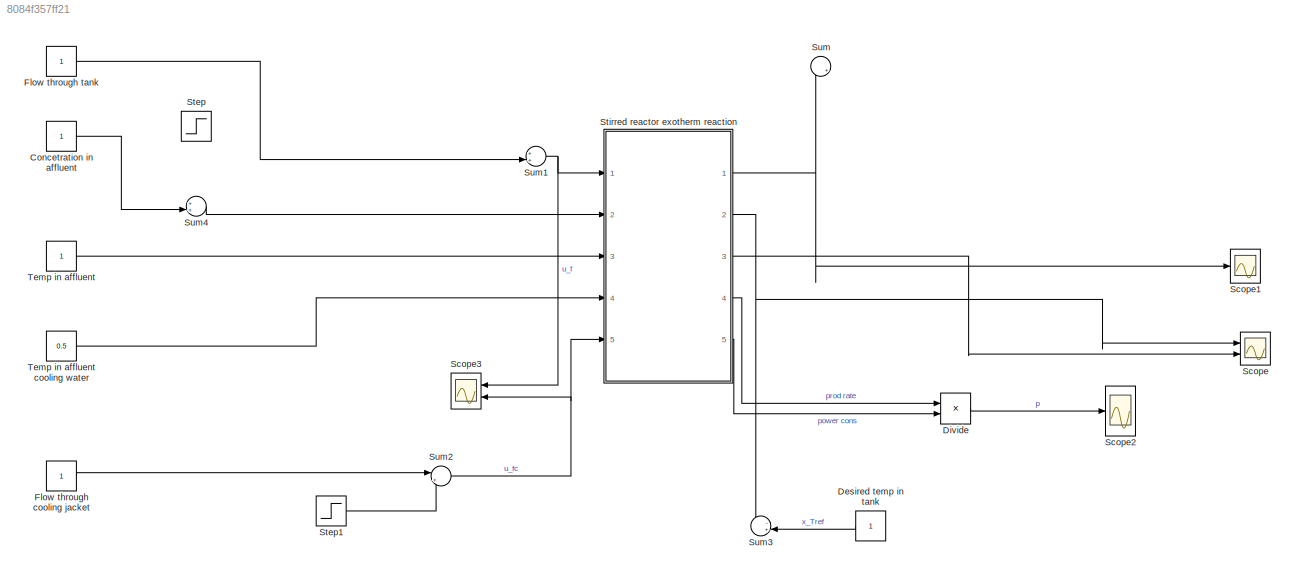
MODEL slx_8084f357ff21
KIND model
CONFIG AbsTol = auto
CONFIG EnableMultiTasking = off
CONFIG FixedStep = auto
CONFIG MaxStep = 0.01
CONFIG MinStep = auto
CONFIG RelTol = 1e-3
CONFIG SampleTimeConstraint = Unconstrained
CONFIG Solver = VariableStepAuto
CONFIG SolverName = VariableStepAuto
CONFIG StartTime = 0.0
CONFIG StopTime = 80
WORKSPACE source: MATLAB code (in-file)
WORKSPACE gamma = 1
WORKSPACE a_A = 4
WORKSPACE a_T = 3
WORKSPACE x_init = 1
WORKSPACE a_c = 1
WORKSPACE a_cc = 2
WORKSPACE T_init = 1
WORKSPACE T_c_init = 1
BLOCK [Constant] Concetration in affluent
BLOCK [Constant] Desired temp in tank
BLOCK [Product] Divide
  Inputs = */
  Ports = [2, 1]
BLOCK [Constant] Flow through cooling jacket
BLOCK [Constant] Flow through tank
BLOCK [Scope] Scope
  Floating = off
  NumInputPorts = 2
  Ports = [2]
  ScopeSpecificationString = Simulink.scopes.TimeScopeBlockCfg('CurrentConfiguration', extmgr.ConfigurationSet(extmgr.Configuration('Core','General UI',true),extmgr.Configuration('Core','Source UI',true),extmgr.Configuration('Sources','WiredSimulink',true),extmgr.Configuration('Visuals','Time Domain',true,'SerializedDisplays',{struct('MinYLimReal','0.72782','MaxYLimReal','1.26167','YLabelReal','','MinYLimMag','0.72782','MaxYL...<+1684ch>
BLOCK [Scope] Scope1
  Floating = off
  NumInputPorts = 1
  Ports = [1]
  ScopeSpecificationString = Simulink.scopes.TimeScopeBlockCfg('CurrentConfiguration', extmgr.ConfigurationSet(extmgr.Configuration('Core','General UI',true),extmgr.Configuration('Core','Source UI',true),extmgr.Configuration('Sources','WiredSimulink',true,'DataLoggingVariableName','ScopeData1'),extmgr.Configuration('Visuals','Time Domain',true,'SerializedDisplays',{struct('MinYLimReal','0.48976','MaxYLimReal','0.66173','YLabe...<+1765ch>
BLOCK [Scope] Scope2
  Floating = off
  NumInputPorts = 1
  Ports = [1]
  ScopeSpecificationString = Simulink.scopes.TimeScopeBlockCfg('CurrentConfiguration', extmgr.ConfigurationSet(extmgr.Configuration('Core','General UI',true),extmgr.Configuration('Core','Source UI',true),extmgr.Configuration('Sources','WiredSimulink',true,'DataLoggingVariableName','ScopeData2'),extmgr.Configuration('Visuals','Time Domain',true,'SerializedDisplays',{struct('MinYLimReal','0.25149','MaxYLimReal','3.2421','YLabel...<+1419ch>
BLOCK [Scope] Scope3
  Floating = off
  NumInputPorts = 2
  Ports = [2]
  ScopeSpecificationString = Simulink.scopes.TimeScopeBlockCfg('CurrentConfiguration', extmgr.ConfigurationSet(extmgr.Configuration('Core','General UI',true),extmgr.Configuration('Core','Source UI',true),extmgr.Configuration('Sources','WiredSimulink',true,'DataLoggingVariableName','ScopeData1'),extmgr.Configuration('Visuals','Time Domain',true,'SerializedDisplays',{struct('MinYLimReal','0.875','MaxYLimReal','2.125','YLabelRea...<+1420ch>
BLOCK [Step] Step
  After = 0.2
  SampleTime = 0
  Time = 40
BLOCK [Step] Step1
  After = 0.2
  SampleTime = 0
  Time = 40
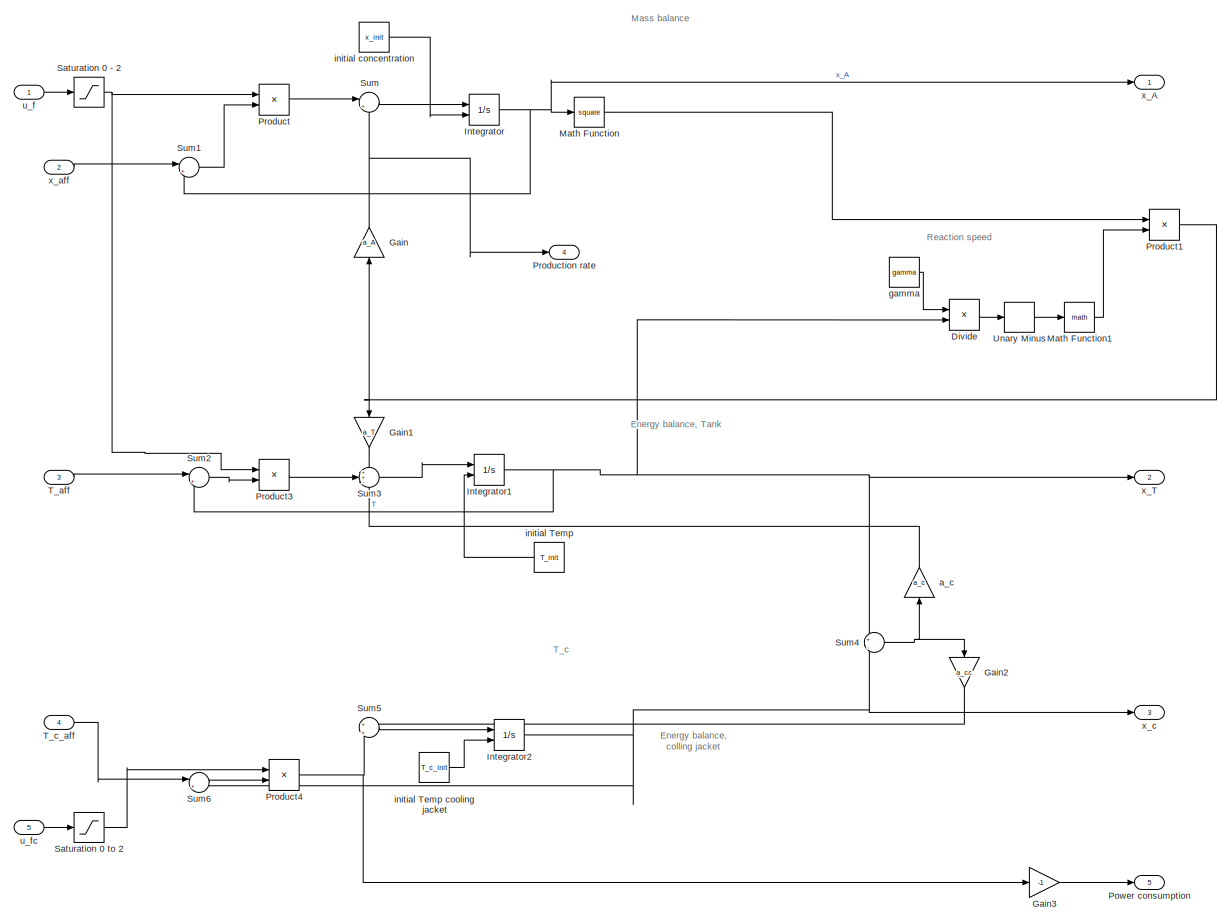
[diagram: Stirred reactor exotherm reaction - part 1/1, most of the canvas]
BLOCK [SubSystem] Stirred reactor exotherm reaction
  Ports = [5, 5]
  RequestExecContextInheritance = off
BLOCK [Product] Stirred reactor exotherm reaction/Divide
  Inputs = */
  Ports = [2, 1]
BLOCK [Gain] Stirred reactor exotherm reaction/Gain
  Gain = a_A
BLOCK [Gain] Stirred reactor exotherm reaction/Gain1
  Gain = a_T
BLOCK [Gain] Stirred reactor exotherm reaction/Gain2
  Gain = a_cc
BLOCK [Gain] Stirred reactor exotherm reaction/Gain3
  Gain = -1
BLOCK [Integrator] Stirred reactor exotherm reaction/Integrator
  InitialConditionSource = external
  Ports = [2, 1]
BLOCK [Integrator] Stirred reactor exotherm reaction/Integrator1
  InitialConditionSource = external
  Ports = [2, 1]
BLOCK [Integrator] Stirred reactor exotherm reaction/Integrator2
  InitialConditionSource = external
  Ports = [2, 1]
BLOCK [Math] Stirred reactor exotherm reaction/Math Function
  Operator = square
  Ports = [1, 1]
BLOCK [Math] Stirred reactor exotherm reaction/Math Function1
  Ports = [1, 1]
BLOCK [Outport] Stirred reactor exotherm reaction/Power consumption
  Port = 5
  VectorParamsAs1DForOutWhenUnconnected = off
BLOCK [Product] Stirred reactor exotherm reaction/Product
  Ports = [2, 1]
BLOCK [Product] Stirred reactor exotherm reaction/Product1
  Ports = [2, 1]
BLOCK [Product] Stirred reactor exotherm reaction/Product3
  Ports = [2, 1]
BLOCK [Product] Stirred reactor exotherm reaction/Product4
  Ports = [2, 1]
BLOCK [Outport] Stirred reactor exotherm reaction/Production rate
  Port = 4
  VectorParamsAs1DForOutWhenUnconnected = off
BLOCK [Saturate] Stirred reactor exotherm reaction/Saturation 0 - 2
  LowerLimit = 0
  UpperLimit = 2
BLOCK [Saturate] Stirred reactor exotherm reaction/Saturation 0 to 2
  LowerLimit = 0
  UpperLimit = 4
BLOCK [Sum] Stirred reactor exotherm reaction/Sum
  Inputs = |+-
  Ports = [2, 1]
BLOCK [Sum] Stirred reactor exotherm reaction/Sum1
  Inputs = |+-
  Ports = [2, 1]
BLOCK [Sum] Stirred reactor exotherm reaction/Sum2
  Inputs = |+-
  Ports = [2, 1]
BLOCK [Sum] Stirred reactor exotherm reaction/Sum3
  Inputs = ++-
  Ports = [3, 1]
BLOCK [Sum] Stirred reactor exotherm reaction/Sum4
  Inputs = +|-
  Ports = [2, 1]
BLOCK [Sum] Stirred reactor exotherm reaction/Sum5
  Inputs = +|+
  Ports = [2, 1]
BLOCK [Sum] Stirred reactor exotherm reaction/Sum6
  Inputs = |+-
  Ports = [2, 1]
BLOCK [Inport] Stirred reactor exotherm reaction/T_aff
  Port = 3
BLOCK [Inport] Stirred reactor exotherm reaction/T_c_aff
  Port = 4
BLOCK [UnaryMinus] Stirred reactor exotherm reaction/Unary Minus
BLOCK [Gain] Stirred reactor exotherm reaction/a_c
  Gain = a_c
BLOCK [Constant] Stirred reactor exotherm reaction/gamma
  Value = gamma
BLOCK [Constant] Stirred reactor exotherm reaction/initial Temp
  Value = T_init
BLOCK [Constant] Stirred reactor exotherm reaction/initial Temp cooling jacket
  Value = T_c_init
BLOCK [Constant] Stirred reactor exotherm reaction/initial concentration
  Value = x_init
BLOCK [Inport] Stirred reactor exotherm reaction/u_f
BLOCK [Inport] Stirred reactor exotherm reaction/u_fc
  Port = 5
BLOCK [Outport] Stirred reactor exotherm reaction/x_A
  VectorParamsAs1DForOutWhenUnconnected = off
BLOCK [Outport] Stirred reactor exotherm reaction/x_T
  Port = 2
  VectorParamsAs1DForOutWhenUnconnected = off
BLOCK [Inport] Stirred reactor exotherm reaction/x_aff
  Port = 2
BLOCK [Outport] Stirred reactor exotherm reaction/x_c
  Port = 3
  VectorParamsAs1DForOutWhenUnconnected = off
BLOCK [Sum] Sum
  Inputs = |+-
  Ports = [2, 1]
BLOCK [Sum] Sum1
  Inputs = ++|
  Ports = [2, 1]
BLOCK [Sum] Sum2
  Inputs = |++
  Ports = [2, 1]
BLOCK [Sum] Sum3
  Inputs = -+|
  Ports = [2, 1]
BLOCK [Sum] Sum4
  Inputs = ++|
  Ports = [2, 1]
BLOCK [Constant] Temp in affluent
BLOCK [Constant] Temp in affluent cooling water
  Value = 0.5
ANNOTATION Stirred reactor exotherm reaction: Energy balance, colling jacket
ANNOTATION Stirred reactor exotherm reaction: Energy balance, Tank
ANNOTATION Stirred reactor exotherm reaction: Mass balance
ANNOTATION Stirred reactor exotherm reaction: Reaction speed
ANNOTATION Stirred reactor exotherm reaction: T_c
LINE Concetration in affluent:1 -> Sum4:2
LINE Desired temp in tank:1 -> Sum3:2
LINE Divide:1 -> Scope2:1
LINE Flow through cooling jacket:1 -> Sum2:1
LINE Flow through tank:1 -> Sum1:2
LINE Step1:1 -> Sum2:2
LINE Stirred reactor exotherm reaction/Divide:1 -> Stirred reactor exotherm reaction/Unary Minus:1
LINE Stirred reactor exotherm reaction/Gain1:1 -> Stirred reactor exotherm reaction/Sum3:1
LINE Stirred reactor exotherm reaction/Gain2:1 -> Stirred reactor exotherm reaction/Sum5:1
LINE Stirred reactor exotherm reaction/Gain3:1 -> Stirred reactor exotherm reaction/Power consumption:1
NET Stirred reactor exotherm reaction/Gain:1 -> Stirred reactor exotherm reaction/Production rate:1, Stirred reactor exotherm reaction/Sum:2
NET Stirred reactor exotherm reaction/Integrator1:1 -> Stirred reactor exotherm reaction/Divide:2, Stirred reactor exotherm reaction/Sum2:2, Stirred reactor exotherm reaction/Sum4:1, Stirred reactor exotherm reaction/x_T:1
NET Stirred reactor exotherm reaction/Integrator2:1 -> Stirred reactor exotherm reaction/Sum4:2, Stirred reactor exotherm reaction/Sum6:2, Stirred reactor exotherm reaction/x_c:1
NET Stirred reactor exotherm reaction/Integrator:1 -> Stirred reactor exotherm reaction/Math Function:1, Stirred reactor exotherm reaction/Sum1:2, Stirred reactor exotherm reaction/x_A:1
LINE Stirred reactor exotherm reaction/Math Function1:1 -> Stirred reactor exotherm reaction/Product1:2
LINE Stirred reactor exotherm reaction/Math Function:1 -> Stirred reactor exotherm reaction/Product1:1
NET Stirred reactor exotherm reaction/Product1:1 -> Stirred reactor exotherm reaction/Gain1:1, Stirred reactor exotherm reaction/Gain:1
LINE Stirred reactor exotherm reaction/Product3:1 -> Stirred reactor exotherm reaction/Sum3:2
NET Stirred reactor exotherm reaction/Product4:1 -> Stirred reactor exotherm reaction/Gain3:1, Stirred reactor exotherm reaction/Sum5:2
LINE Stirred reactor exotherm reaction/Product:1 -> Stirred reactor exotherm reaction/Sum:1
NET Stirred reactor exotherm reaction/Saturation 0 - 2:1 -> Stirred reactor exotherm reaction/Product3:1, Stirred reactor exotherm reaction/Product:1
LINE Stirred reactor exotherm reaction/Saturation 0 to 2:1 -> Stirred reactor exotherm reaction/Product4:1
LINE Stirred reactor exotherm reaction/Sum1:1 -> Stirred reactor exotherm reaction/Product:2
LINE Stirred reactor exotherm reaction/Sum2:1 -> Stirred reactor exotherm reaction/Product3:2
LINE Stirred reactor exotherm reaction/Sum3:1 -> Stirred reactor exotherm reaction/Integrator1:1
NET Stirred reactor exotherm reaction/Sum4:1 -> Stirred reactor exotherm reaction/Gain2:1, Stirred reactor exotherm reaction/a_c:1
LINE Stirred reactor exotherm reaction/Sum5:1 -> Stirred reactor exotherm reaction/Integrator2:1
LINE Stirred reactor exotherm reaction/Sum6:1 -> Stirred reactor exotherm reaction/Product4:2
LINE Stirred reactor exotherm reaction/Sum:1 -> Stirred reactor exotherm reaction/Integrator:1
LINE Stirred reactor exotherm reaction/T_aff:1 -> Stirred reactor exotherm reaction/Sum2:1
LINE Stirred reactor exotherm reaction/T_c_aff:1 -> Stirred reactor exotherm reaction/Sum6:1
LINE Stirred reactor exotherm reaction/Unary Minus:1 -> Stirred reactor exotherm reaction/Math Function1:1
LINE Stirred reactor exotherm reaction/a_c:1 -> Stirred reactor exotherm reaction/Sum3:3
LINE Stirred reactor exotherm reaction/gamma:1 -> Stirred reactor exotherm reaction/Divide:1
LINE Stirred reactor exotherm reaction/initial Temp cooling jacket:1 -> Stirred reactor exotherm reaction/Integrator2:2
LINE Stirred reactor exotherm reaction/initial Temp:1 -> Stirred reactor exotherm reaction/Integrator1:2
LINE Stirred reactor exotherm reaction/initial concentration:1 -> Stirred reactor exotherm reaction/Integrator:2
LINE Stirred reactor exotherm reaction/u_f:1 -> Stirred reactor exotherm reaction/Saturation 0 - 2:1
LINE Stirred reactor exotherm reaction/u_fc:1 -> Stirred reactor exotherm reaction/Saturation 0 to 2:1
LINE Stirred reactor exotherm reaction/x_aff:1 -> Stirred reactor exotherm reaction/Sum1:1
NET Stirred reactor exotherm reaction:1 -> Scope1:1, Sum:2
NET Stirred reactor exotherm reaction:2 -> Scope:1, Sum3:1
LINE Stirred reactor exotherm reaction:3 -> Scope:2
LINE Stirred reactor exotherm reaction:4 -> Divide:1
LINE Stirred reactor exotherm reaction:5 -> Divide:2
NET Sum1:1 -> Scope3:1, Stirred reactor exotherm reaction:1
NET Sum2:1 -> Scope3:2, Stirred reactor exotherm reaction:5
LINE Sum4:1 -> Stirred reactor exotherm reaction:2
LINE Temp in affluent cooling water:1 -> Stirred reactor exotherm reaction:4
LINE Temp in affluent:1 -> Stirred reactor exotherm reaction:3
note: NET lines group one-source signal fan-out (src -> all destinations, sorted); 1:1 wires keep LINE
